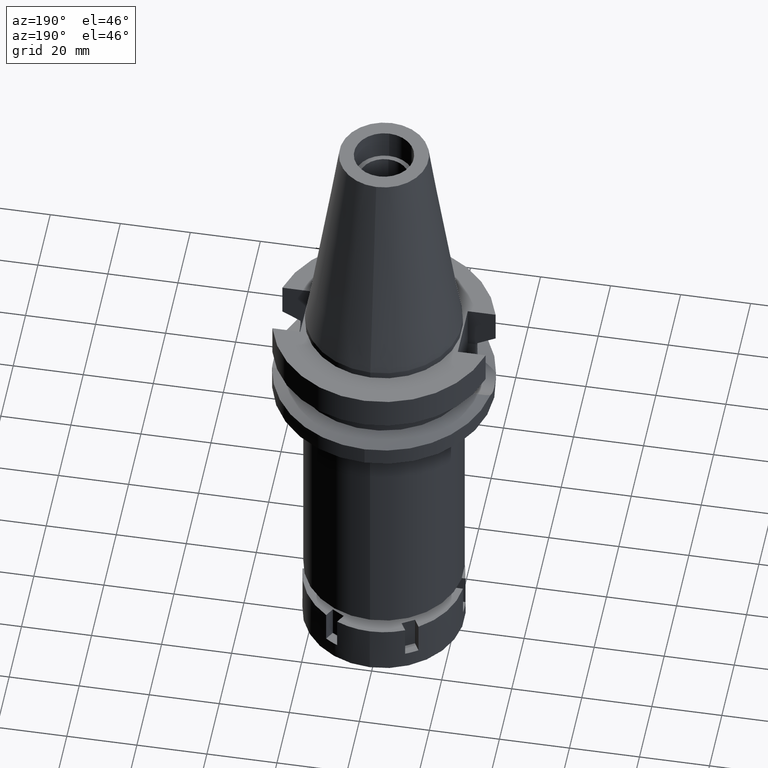
[diagram: clean part render]
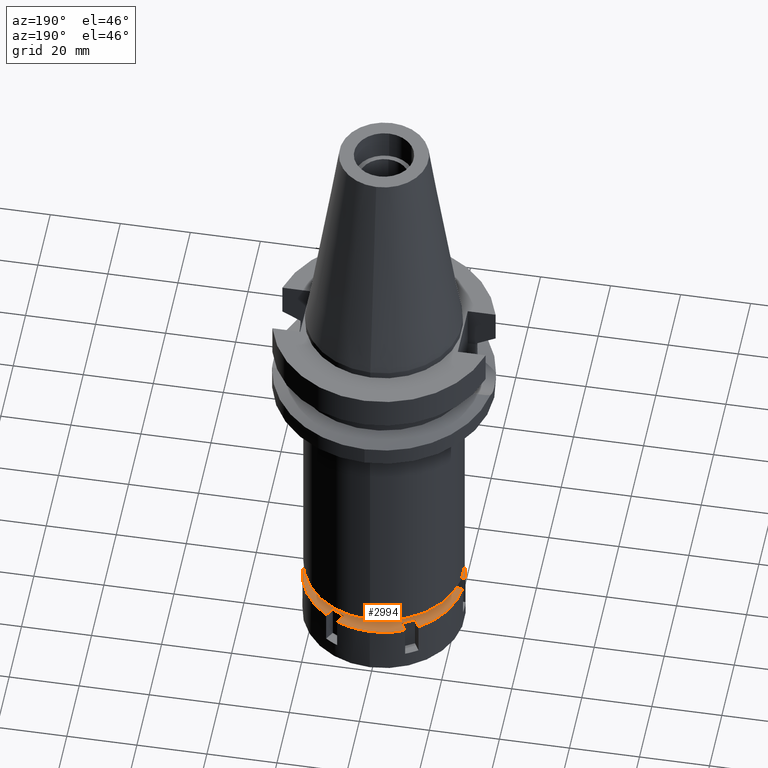
[diagram: same view with one face highlighted and labeled with its STEP entity id]
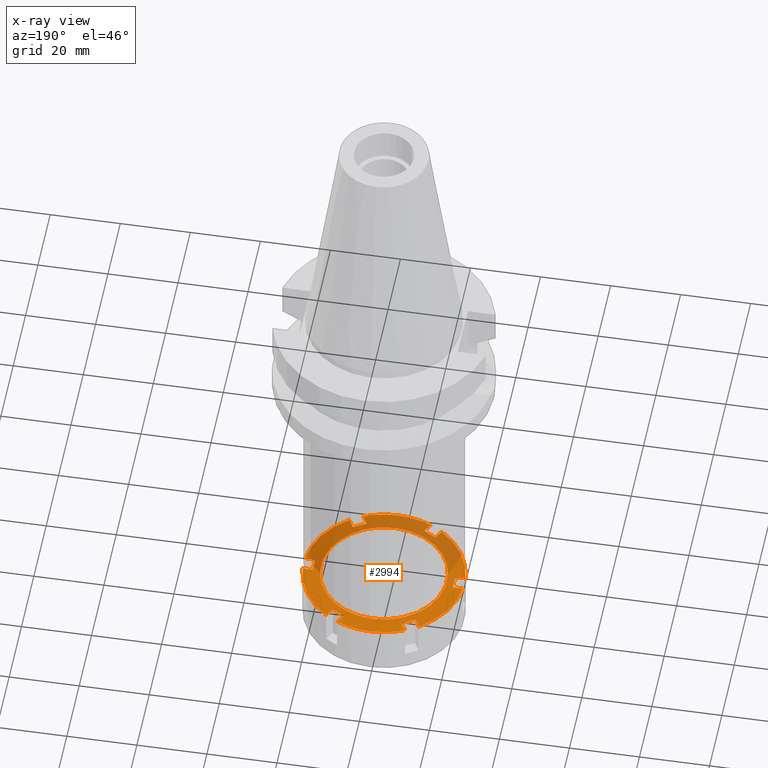
[diagram: x-ray of the same camera — body ghosted, the highlighted face saturated]
A machine part, auxiliary view. The second image highlights one B-rep face of the part: STEP entity #2994.
The next image is the same camera in x-ray: the body ghosted, the highlighted face saturated — about 45% of this face is hidden behind the body in this view.
In plain terms, the highlighted planar face has unit normal (0, 0, -1).
Its self-contained STEP definition (entity closure, byte-faithful):
#9 = EDGE_CURVE ( 'NONE', #2572, #2604, #3608, .T. ) ;
#12 = LINE ( 'NONE', #1138, #2352 ) ;
#24 = CARTESIAN_POINT ( 'NONE',  ( 0.0000000000000000000, 0.0000000000000000000, 0.0000000000000000000 ) ) ;
#26 = DIRECTION ( 'NONE',  ( -0.5000000000002851053, 0.8660254037842740615, 0.0000000000000000000 ) ) ;
#40 = CIRCLE ( 'NONE', #2935, 23.00000000000000000 ) ;
#41 = ORIENTED_EDGE ( 'NONE', *, *, #3063, .F. ) ;
#66 = VERTEX_POINT ( 'NONE', #1978 ) ;
#134 = EDGE_CURVE ( 'NONE', #627, #1233, #12, .T. ) ;
#141 = LINE ( 'NONE', #1258, #2341 ) ;
#170 = VECTOR ( 'NONE', #2665, 1000.000000000000000 ) ;
#228 = VERTEX_POINT ( 'NONE', #3158 ) ;
#229 = ORIENTED_EDGE ( 'NONE', *, *, #959, .F. ) ;
#251 = VERTEX_POINT ( 'NONE', #2566 ) ;
#274 = CARTESIAN_POINT ( 'NONE',  ( 0.0000000000000000000, -18.00000000000000000, 0.0000000000000000000 ) ) ;
#289 = ORIENTED_EDGE ( 'NONE', *, *, #1415, .F. ) ;
#306 = ORIENTED_EDGE ( 'NONE', *, *, #3008, .F. ) ;
#329 = CARTESIAN_POINT ( 'NONE',  ( -13.18849004495999999, -18.84313483298000236, 0.0000000000000000000 ) ) ;
#340 = CARTESIAN_POINT ( 'NONE',  ( 0.0000000000000000000, 0.0000000000000000000, 0.0000000000000000000 ) ) ;
#345 = CARTESIAN_POINT ( 'NONE',  ( 20.00000000000000000, -2.000000000000000000, 0.0000000000000000000 ) ) ;
#354 = CARTESIAN_POINT ( 'NONE',  ( -8.267949192433000860, -18.32050807569000384, 0.0000000000000000000 ) ) ;
#364 = DIRECTION ( 'NONE',  ( 1.000000000000000000, 0.0000000000000000000, 0.0000000000000000000 ) ) ;
#382 = VERTEX_POINT ( 'NONE', #1268 ) ;
#391 = VERTEX_POINT ( 'NONE', #738 ) ;
#408 = CARTESIAN_POINT ( 'NONE',  ( 11.73205080756999941, 16.32050807569000028, 0.0000000000000000000 ) ) ;
#446 = CARTESIAN_POINT ( 'NONE',  ( -11.73205080756999941, 16.32050807569000028, 0.0000000000000000000 ) ) ;
#453 = LINE ( 'NONE', #2434, #3288 ) ;
#461 = CARTESIAN_POINT ( 'NONE',  ( -11.73205080756999941, -16.32050807569000028, 0.0000000000000000000 ) ) ;
#516 = EDGE_CURVE ( 'NONE', #2929, #2513, #2657, .T. ) ;
#524 = CARTESIAN_POINT ( 'NONE',  ( 9.724388429822001356, 20.84313483297999881, 0.0000000000000000000 ) ) ;
#545 = DIRECTION ( 'NONE',  ( -0.5000000000002851053, -0.8660254037842740615, 0.0000000000000000000 ) ) ;
#554 = DIRECTION ( 'NONE',  ( 0.9962121075990957308, -0.08695652173912968297, 0.0000000000000000000 ) ) ;
#574 = DIRECTION ( 'NONE',  ( 0.0000000000000000000, -1.000000000000000000, 0.0000000000000000000 ) ) ;
#581 = CIRCLE ( 'NONE', #706, 18.00000000000000000 ) ;
#586 = DIRECTION ( 'NONE',  ( 0.0000000000000000000, -1.000000000000000000, 0.0000000000000000000 ) ) ;
#591 = CARTESIAN_POINT ( 'NONE',  ( 0.0000000000000000000, 0.0000000000000000000, 0.0000000000000000000 ) ) ;
#627 = VERTEX_POINT ( 'NONE', #2744 ) ;
#643 = ORIENTED_EDGE ( 'NONE', *, *, #3638, .F. ) ;
#672 = CARTESIAN_POINT ( 'NONE',  ( 0.0000000000000000000, 23.00000000000000000, 0.0000000000000000000 ) ) ;
#684 = DIRECTION ( 'NONE',  ( -0.8660254037844541397, 0.4999999999999731326, 0.0000000000000000000 ) ) ;
#695 = VECTOR ( 'NONE', #1362, 1000.000000000000000 ) ;
#704 = ORIENTED_EDGE ( 'NONE', *, *, #2001, .F. ) ;
#706 = AXIS2_PLACEMENT_3D ( 'NONE', #1538, #3218, #1242 ) ;
#728 = LINE ( 'NONE', #3047, #695 ) ;
#735 = ORIENTED_EDGE ( 'NONE', *, *, #1778, .F. ) ;
#738 = CARTESIAN_POINT ( 'NONE',  ( -22.91287847478000117, 2.000000000000000000, 0.0000000000000000000 ) ) ;
#751 = VECTOR ( 'NONE', #26, 1000.000000000000114 ) ;
#778 = VERTEX_POINT ( 'NONE', #354 ) ;
#793 = ORIENTED_EDGE ( 'NONE', *, *, #3380, .T. ) ;
#801 = EDGE_CURVE ( 'NONE', #3541, #1285, #1432, .T. ) ;
#813 = VECTOR ( 'NONE', #2596, 1000.000000000000114 ) ;
#816 = CARTESIAN_POINT ( 'NONE',  ( -20.00000000000000000, -2.000000000000000000, 0.0000000000000000000 ) ) ;
#819 = LINE ( 'NONE', #1673, #1823 ) ;
#823 = EDGE_CURVE ( 'NONE', #3224, #3328, #1293, .T. ) ;
#825 = EDGE_CURVE ( 'NONE', #228, #2542, #2278, .T. ) ;
#827 = AXIS2_PLACEMENT_3D ( 'NONE', #591, #1899, #1624 ) ;
#842 = DIRECTION ( 'NONE',  ( -0.8660254037844541397, -0.4999999999999731326, 0.0000000000000000000 ) ) ;
#867 = EDGE_CURVE ( 'NONE', #778, #251, #1174, .T. ) ;
#877 = DIRECTION ( 'NONE',  ( 0.0000000000000000000, 1.000000000000000000, 0.0000000000000000000 ) ) ;
#886 = LINE ( 'NONE', #1998, #751 ) ;
#906 = VERTEX_POINT ( 'NONE', #329 ) ;
#910 = ORIENTED_EDGE ( 'NONE', *, *, #801, .F. ) ;
#915 = EDGE_CURVE ( 'NONE', #2453, #66, #2051, .T. ) ;
#924 = AXIS2_PLACEMENT_3D ( 'NONE', #1176, #2279, #2257 ) ;
#930 = ORIENTED_EDGE ( 'NONE', *, *, #1531, .T. ) ;
#959 = EDGE_CURVE ( 'NONE', #3328, #2572, #1410, .T. ) ;
#992 = VECTOR ( 'NONE', #842, 1000.000000000000114 ) ;
#1042 = VERTEX_POINT ( 'NONE', #3155 ) ;
#1081 = CARTESIAN_POINT ( 'NONE',  ( -13.18849004495999999, 18.84313483298000236, 0.0000000000000000000 ) ) ;
#1097 = CARTESIAN_POINT ( 'NONE',  ( 11.73205080756999941, -16.32050807569000028, 0.0000000000000000000 ) ) ;
#1119 = FACE_BOUND ( 'NONE', #3491, .T. ) ;
#1138 = CARTESIAN_POINT ( 'NONE',  ( 8.267949192431000682, -18.32050807569000384, 0.0000000000000000000 ) ) ;
#1153 = DIRECTION ( 'NONE',  ( -0.4227994969487119392, 0.9062232536080258027, 0.0000000000000000000 ) ) ;
#1164 = VECTOR ( 'NONE', #1574, 1000.000000000000114 ) ;
#1166 = CARTESIAN_POINT ( 'NONE',  ( 9.724388429822001356, 20.84313483297999881, 0.0000000000000000000 ) ) ;
#1172 = DIRECTION ( 'NONE',  ( 0.5000000000003280709, 0.8660254037842491925, 0.0000000000000000000 ) ) ;
#1174 = LINE ( 'NONE', #2857, #1236 ) ;
#1176 = CARTESIAN_POINT ( 'NONE',  ( 0.0000000000000000000, 0.0000000000000000000, 0.0000000000000000000 ) ) ;
#1186 = ORIENTED_EDGE ( 'NONE', *, *, #516, .F. ) ;
#1196 = CARTESIAN_POINT ( 'NONE',  ( -13.18849004495999999, 18.84313483298000236, 0.0000000000000000000 ) ) ;
#1210 = DIRECTION ( 'NONE',  ( 0.0000000000000000000, 1.000000000000000000, 0.0000000000000000000 ) ) ;
#1233 = VERTEX_POINT ( 'NONE', #3228 ) ;
#1236 = VECTOR ( 'NONE', #684, 1000.000000000000114 ) ;
#1242 = DIRECTION ( 'NONE',  ( 0.0000000000000000000, 1.000000000000000000, 0.0000000000000000000 ) ) ;
#1258 = CARTESIAN_POINT ( 'NONE',  ( -22.91287847478000117, 2.000000000000000000, 0.0000000000000000000 ) ) ;
#1268 = CARTESIAN_POINT ( 'NONE',  ( 0.0000000000000000000, -23.00000000000000000, 0.0000000000000000000 ) ) ;
#1277 = VERTEX_POINT ( 'NONE', #3245 ) ;
#1285 = VERTEX_POINT ( 'NONE', #446 ) ;
#1293 = CIRCLE ( 'NONE', #2114, 23.00000000000000355 ) ;
#1308 = DIRECTION ( 'NONE',  ( 0.8660254037844541397, -0.4999999999999731326, 0.0000000000000000000 ) ) ;
#1317 = EDGE_CURVE ( 'NONE', #1917, #1969, #819, .T. ) ;
#1321 = DIRECTION ( 'NONE',  ( 0.0000000000000000000, 0.0000000000000000000, -1.000000000000000000 ) ) ;
#1362 = DIRECTION ( 'NONE',  ( -1.000000000000000000, 0.0000000000000000000, 0.0000000000000000000 ) ) ;
#1366 = LINE ( 'NONE', #3164, #813 ) ;
#1371 = CARTESIAN_POINT ( 'NONE',  ( 0.0000000000000000000, 0.0000000000000000000, 0.0000000000000000000 ) ) ;
#1381 = CARTESIAN_POINT ( 'NONE',  ( 22.91287847478000117, -2.000000000000000000, 0.0000000000000000000 ) ) ;
#1409 = ORIENTED_EDGE ( 'NONE', *, *, #2494, .F. ) ;
#1410 = CIRCLE ( 'NONE', #1763, 23.00000000000000000 ) ;
#1415 = EDGE_CURVE ( 'NONE', #1233, #382, #2930, .T. ) ;
#1424 = ORIENTED_EDGE ( 'NONE', *, *, #3448, .F. ) ;
#1430 = ORIENTED_EDGE ( 'NONE', *, *, #867, .F. ) ;
#1432 = LINE ( 'NONE', #1196, #3476 ) ;
#1468 = ORIENTED_EDGE ( 'NONE', *, *, #915, .F. ) ;
#1471 = ORIENTED_EDGE ( 'NONE', *, *, #1317, .T. ) ;
#1487 = CARTESIAN_POINT ( 'NONE',  ( -8.267949192431000682, 18.32050807569000384, 0.0000000000000000000 ) ) ;
#1511 = VECTOR ( 'NONE', #3359, 1000.000000000000114 ) ;
#1531 = EDGE_CURVE ( 'NONE', #1679, #228, #2599, .T. ) ;
#1538 = CARTESIAN_POINT ( 'NONE',  ( 0.0000000000000000000, 0.0000000000000000000, 0.0000000000000000000 ) ) ;
#1570 = VERTEX_POINT ( 'NONE', #1487 ) ;
#1572 = VERTEX_POINT ( 'NONE', #1973 ) ;
#1574 = DIRECTION ( 'NONE',  ( -0.5000000000003280709, -0.8660254037842491925, 0.0000000000000000000 ) ) ;
#1592 = ORIENTED_EDGE ( 'NONE', *, *, #3351, .F. ) ;
#1594 = ORIENTED_EDGE ( 'NONE', *, *, #2765, .F. ) ;
#1624 = DIRECTION ( 'NONE',  ( 0.4227994969487119392, -0.9062232536080258027, 0.0000000000000000000 ) ) ;
#1628 = CIRCLE ( 'NONE', #3466, 23.00000000000000355 ) ;
#1658 = DIRECTION ( 'NONE',  ( 0.0000000000000000000, -1.000000000000000000, 0.0000000000000000000 ) ) ;
#1673 = CARTESIAN_POINT ( 'NONE',  ( -20.00000000000000000, 2.000000000000000000, 0.0000000000000000000 ) ) ;
#1679 = VERTEX_POINT ( 'NONE', #2911 ) ;
#1686 = DIRECTION ( 'NONE',  ( -0.9962121075990957308, 0.08695652173912968297, 0.0000000000000000000 ) ) ;
#1763 = AXIS2_PLACEMENT_3D ( 'NONE', #3429, #2623, #1210 ) ;
#1776 = VERTEX_POINT ( 'NONE', #3313 ) ;
#1778 = EDGE_CURVE ( 'NONE', #251, #906, #1812, .T. ) ;
#1805 = AXIS2_PLACEMENT_3D ( 'NONE', #1371, #1321, #2781 ) ;
#1812 = LINE ( 'NONE', #461, #1164 ) ;
#1823 = VECTOR ( 'NONE', #1658, 1000.000000000000000 ) ;
#1899 = DIRECTION ( 'NONE',  ( 0.0000000000000000000, 0.0000000000000000000, -1.000000000000000000 ) ) ;
#1917 = VERTEX_POINT ( 'NONE', #3326 ) ;
#1938 = CARTESIAN_POINT ( 'NONE',  ( 0.0000000000000000000, 0.0000000000000000000, 0.0000000000000000000 ) ) ;
#1969 = VERTEX_POINT ( 'NONE', #816 ) ;
#1973 = CARTESIAN_POINT ( 'NONE',  ( -22.91287847478000117, -2.000000000000000000, 0.0000000000000000000 ) ) ;
#1974 = CIRCLE ( 'NONE', #924, 22.99999999999999289 ) ;
#1977 = CARTESIAN_POINT ( 'NONE',  ( 0.0000000000000000000, 0.0000000000000000000, 0.0000000000000000000 ) ) ;
#1978 = CARTESIAN_POINT ( 'NONE',  ( 13.18849004495999999, 18.84313483298000236, 0.0000000000000000000 ) ) ;
#1998 = CARTESIAN_POINT ( 'NONE',  ( -8.267949192431000682, 18.32050807569000384, 0.0000000000000000000 ) ) ;
#2001 = EDGE_CURVE ( 'NONE', #1042, #778, #1366, .T. ) ;
#2004 = CARTESIAN_POINT ( 'NONE',  ( 22.91287847478000117, 2.000000000000000000, 0.0000000000000000000 ) ) ;
#2033 = CARTESIAN_POINT ( 'NONE',  ( 20.00000000000000000, 2.000000000000000000, 0.0000000000000000000 ) ) ;
#2046 = VECTOR ( 'NONE', #545, 1000.000000000000114 ) ;
#2051 = LINE ( 'NONE', #408, #3534 ) ;
#2066 = ORIENTED_EDGE ( 'NONE', *, *, #825, .T. ) ;
#2079 = CARTESIAN_POINT ( 'NONE',  ( 22.91287847478000117, -2.000000000000000000, 0.0000000000000000000 ) ) ;
#2103 = AXIS2_PLACEMENT_3D ( 'NONE', #2918, #3252, #2699 ) ;
#2114 = AXIS2_PLACEMENT_3D ( 'NONE', #24, #2624, #1153 ) ;
#2165 = CARTESIAN_POINT ( 'NONE',  ( 0.0000000000000000000, 0.0000000000000000000, 0.0000000000000000000 ) ) ;
#2257 = DIRECTION ( 'NONE',  ( 0.5734126106503841802, 0.8192667318688773292, 0.0000000000000000000 ) ) ;
#2258 = EDGE_CURVE ( 'NONE', #1969, #1572, #728, .T. ) ;
#2260 = DIRECTION ( 'NONE',  ( 0.5000000000002851053, -0.8660254037842740615, 0.0000000000000000000 ) ) ;
#2264 = CARTESIAN_POINT ( 'NONE',  ( 0.0000000000000000000, 18.00000000000000000, 0.0000000000000000000 ) ) ;
#2278 = LINE ( 'NONE', #2033, #3644 ) ;
#2279 = DIRECTION ( 'NONE',  ( 0.0000000000000000000, 0.0000000000000000000, -1.000000000000000000 ) ) ;
#2325 = ORIENTED_EDGE ( 'NONE', *, *, #3062, .F. ) ;
#2341 = VECTOR ( 'NONE', #364, 1000.000000000000000 ) ;
#2352 = VECTOR ( 'NONE', #2260, 1000.000000000000114 ) ;
#2365 = VECTOR ( 'NONE', #877, 1000.000000000000000 ) ;
#2402 = LINE ( 'NONE', #3521, #3056 ) ;
#2430 = EDGE_CURVE ( 'NONE', #1285, #1570, #2801, .T. ) ;
#2434 = CARTESIAN_POINT ( 'NONE',  ( 13.18849004495999999, -18.84313483298000236, 0.0000000000000000000 ) ) ;
#2440 = ORIENTED_EDGE ( 'NONE', *, *, #2879, .T. ) ;
#2453 = VERTEX_POINT ( 'NONE', #3435 ) ;
#2462 = AXIS2_PLACEMENT_3D ( 'NONE', #1977, #3431, #1686 ) ;
#2494 = EDGE_CURVE ( 'NONE', #382, #1042, #40, .T. ) ;
#2509 = DIRECTION ( 'NONE',  ( 0.0000000000000000000, 0.0000000000000000000, -1.000000000000000000 ) ) ;
#2513 = VERTEX_POINT ( 'NONE', #2264 ) ;
#2542 = VERTEX_POINT ( 'NONE', #2004 ) ;
#2566 = CARTESIAN_POINT ( 'NONE',  ( -11.73205080756999941, -16.32050807569000028, 0.0000000000000000000 ) ) ;
#2572 = VERTEX_POINT ( 'NONE', #1166 ) ;
#2596 = DIRECTION ( 'NONE',  ( 0.5000000000002851053, 0.8660254037842740615, 0.0000000000000000000 ) ) ;
#2599 = LINE ( 'NONE', #345, #2365 ) ;
#2604 = VERTEX_POINT ( 'NONE', #3633 ) ;
#2607 = DIRECTION ( 'NONE',  ( 0.5000000000003280709, -0.8660254037842491925, 0.0000000000000000000 ) ) ;
#2623 = DIRECTION ( 'NONE',  ( 0.0000000000000000000, 0.0000000000000000000, -1.000000000000000000 ) ) ;
#2624 = DIRECTION ( 'NONE',  ( 0.0000000000000000000, 0.0000000000000000000, -1.000000000000000000 ) ) ;
#2629 = VERTEX_POINT ( 'NONE', #1381 ) ;
#2644 = CIRCLE ( 'NONE', #2103, 22.99999999999999289 ) ;
#2657 = CIRCLE ( 'NONE', #2946, 18.00000000000000000 ) ;
#2665 = DIRECTION ( 'NONE',  ( -1.000000000000000000, 0.0000000000000000000, 0.0000000000000000000 ) ) ;
#2699 = DIRECTION ( 'NONE',  ( -0.5734126106503841802, -0.8192667318688773292, 0.0000000000000000000 ) ) ;
#2744 = CARTESIAN_POINT ( 'NONE',  ( 8.267949192431000682, -18.32050807569000384, 0.0000000000000000000 ) ) ;
#2765 = EDGE_CURVE ( 'NONE', #2513, #2929, #581, .T. ) ;
#2781 = DIRECTION ( 'NONE',  ( 0.0000000000000000000, -1.000000000000000000, 0.0000000000000000000 ) ) ;
#2801 = LINE ( 'NONE', #3340, #1511 ) ;
#2857 = CARTESIAN_POINT ( 'NONE',  ( -8.267949192433000860, -18.32050807569000384, 0.0000000000000000000 ) ) ;
#2879 = EDGE_CURVE ( 'NONE', #391, #1917, #141, .T. ) ;
#2911 = CARTESIAN_POINT ( 'NONE',  ( 20.00000000000000000, -2.000000000000000000, 0.0000000000000000000 ) ) ;
#2918 = CARTESIAN_POINT ( 'NONE',  ( 0.0000000000000000000, 0.0000000000000000000, 0.0000000000000000000 ) ) ;
#2929 = VERTEX_POINT ( 'NONE', #274 ) ;
#2930 = CIRCLE ( 'NONE', #827, 23.00000000000000355 ) ;
#2935 = AXIS2_PLACEMENT_3D ( 'NONE', #340, #2509, #586 ) ;
#2946 = AXIS2_PLACEMENT_3D ( 'NONE', #1938, #3064, #574 ) ;
#2965 = ORIENTED_EDGE ( 'NONE', *, *, #9, .F. ) ;
#2994 = ADVANCED_FACE ( 'NONE', ( #3571, #1119 ), #3355, .F. ) ;
#2997 = CIRCLE ( 'NONE', #2462, 23.00000000000000355 ) ;
#3004 = EDGE_CURVE ( 'NONE', #2629, #1277, #1628, .T. ) ;
#3008 = EDGE_CURVE ( 'NONE', #1776, #627, #3621, .T. ) ;
#3017 = EDGE_LOOP ( 'NONE', ( #229, #3557, #41, #3023, #910, #643, #2440, #1471, #3311, #1592, #735, #1430, #704, #1409, #289, #3496, #306, #3220, #3526, #793, #930, #2066, #2325, #1468, #1424, #2965 ) ) ;
#3023 = ORIENTED_EDGE ( 'NONE', *, *, #2430, .F. ) ;
#3047 = CARTESIAN_POINT ( 'NONE',  ( -20.00000000000000000, -2.000000000000000000, 0.0000000000000000000 ) ) ;
#3056 = VECTOR ( 'NONE', #1308, 1000.000000000000114 ) ;
#3062 = EDGE_CURVE ( 'NONE', #66, #2542, #1974, .T. ) ;
#3063 = EDGE_CURVE ( 'NONE', #1570, #3224, #886, .T. ) ;
#3064 = DIRECTION ( 'NONE',  ( 0.0000000000000000000, 0.0000000000000000000, 1.000000000000000000 ) ) ;
#3079 = DIRECTION ( 'NONE',  ( 0.0000000000000000000, 0.0000000000000000000, -1.000000000000000000 ) ) ;
#3155 = CARTESIAN_POINT ( 'NONE',  ( -9.724388429823001445, -20.84313483297999881, 0.0000000000000000000 ) ) ;
#3158 = CARTESIAN_POINT ( 'NONE',  ( 20.00000000000000000, 2.000000000000000000, 0.0000000000000000000 ) ) ;
#3164 = CARTESIAN_POINT ( 'NONE',  ( -9.724388429822001356, -20.84313483297999881, 0.0000000000000000000 ) ) ;
#3176 = DIRECTION ( 'NONE',  ( 1.000000000000000000, 0.0000000000000000000, 0.0000000000000000000 ) ) ;
#3213 = DIRECTION ( 'NONE',  ( -0.5000000000004030110, 0.8660254037842058938, 0.0000000000000000000 ) ) ;
#3218 = DIRECTION ( 'NONE',  ( 0.0000000000000000000, 0.0000000000000000000, 1.000000000000000000 ) ) ;
#3220 = ORIENTED_EDGE ( 'NONE', *, *, #3309, .F. ) ;
#3224 = VERTEX_POINT ( 'NONE', #3433 ) ;
#3228 = CARTESIAN_POINT ( 'NONE',  ( 9.724388429820001178, -20.84313483297999881, 0.0000000000000000000 ) ) ;
#3245 = CARTESIAN_POINT ( 'NONE',  ( 13.18849004495999999, -18.84313483298000236, 0.0000000000000000000 ) ) ;
#3252 = DIRECTION ( 'NONE',  ( 0.0000000000000000000, 0.0000000000000000000, -1.000000000000000000 ) ) ;
#3288 = VECTOR ( 'NONE', #3213, 1000.000000000000114 ) ;
#3309 = EDGE_CURVE ( 'NONE', #1277, #1776, #453, .T. ) ;
#3311 = ORIENTED_EDGE ( 'NONE', *, *, #2258, .T. ) ;
#3313 = CARTESIAN_POINT ( 'NONE',  ( 11.73205080756999941, -16.32050807569000028, 0.0000000000000000000 ) ) ;
#3326 = CARTESIAN_POINT ( 'NONE',  ( -20.00000000000000000, 2.000000000000000000, 0.0000000000000000000 ) ) ;
#3328 = VERTEX_POINT ( 'NONE', #672 ) ;
#3340 = CARTESIAN_POINT ( 'NONE',  ( -11.73205080756999941, 16.32050807569000028, 0.0000000000000000000 ) ) ;
#3351 = EDGE_CURVE ( 'NONE', #906, #1572, #2644, .T. ) ;
#3355 = PLANE ( 'NONE',  #1805 ) ;
#3359 = DIRECTION ( 'NONE',  ( 0.8660254037844541397, 0.4999999999999731326, 0.0000000000000000000 ) ) ;
#3380 = EDGE_CURVE ( 'NONE', #2629, #1679, #3538, .T. ) ;
#3429 = CARTESIAN_POINT ( 'NONE',  ( 0.0000000000000000000, 0.0000000000000000000, 0.0000000000000000000 ) ) ;
#3431 = DIRECTION ( 'NONE',  ( 0.0000000000000000000, 0.0000000000000000000, -1.000000000000000000 ) ) ;
#3433 = CARTESIAN_POINT ( 'NONE',  ( -9.724388429820001178, 20.84313483297999881, 0.0000000000000000000 ) ) ;
#3435 = CARTESIAN_POINT ( 'NONE',  ( 11.73205080756999941, 16.32050807569000028, 0.0000000000000000000 ) ) ;
#3448 = EDGE_CURVE ( 'NONE', #2604, #2453, #2402, .T. ) ;
#3466 = AXIS2_PLACEMENT_3D ( 'NONE', #2165, #3079, #554 ) ;
#3476 = VECTOR ( 'NONE', #2607, 1000.000000000000114 ) ;
#3491 = EDGE_LOOP ( 'NONE', ( #1594, #1186 ) ) ;
#3496 = ORIENTED_EDGE ( 'NONE', *, *, #134, .F. ) ;
#3521 = CARTESIAN_POINT ( 'NONE',  ( 8.267949192433000860, 18.32050807569000384, 0.0000000000000000000 ) ) ;
#3526 = ORIENTED_EDGE ( 'NONE', *, *, #3004, .F. ) ;
#3534 = VECTOR ( 'NONE', #1172, 1000.000000000000114 ) ;
#3538 = LINE ( 'NONE', #2079, #170 ) ;
#3541 = VERTEX_POINT ( 'NONE', #1081 ) ;
#3557 = ORIENTED_EDGE ( 'NONE', *, *, #823, .F. ) ;
#3571 = FACE_OUTER_BOUND ( 'NONE', #3017, .T. ) ;
#3608 = LINE ( 'NONE', #524, #2046 ) ;
#3621 = LINE ( 'NONE', #1097, #992 ) ;
#3633 = CARTESIAN_POINT ( 'NONE',  ( 8.267949192433000860, 18.32050807569000384, 0.0000000000000000000 ) ) ;
#3638 = EDGE_CURVE ( 'NONE', #391, #3541, #2997, .T. ) ;
#3644 = VECTOR ( 'NONE', #3176, 1000.000000000000000 ) ;